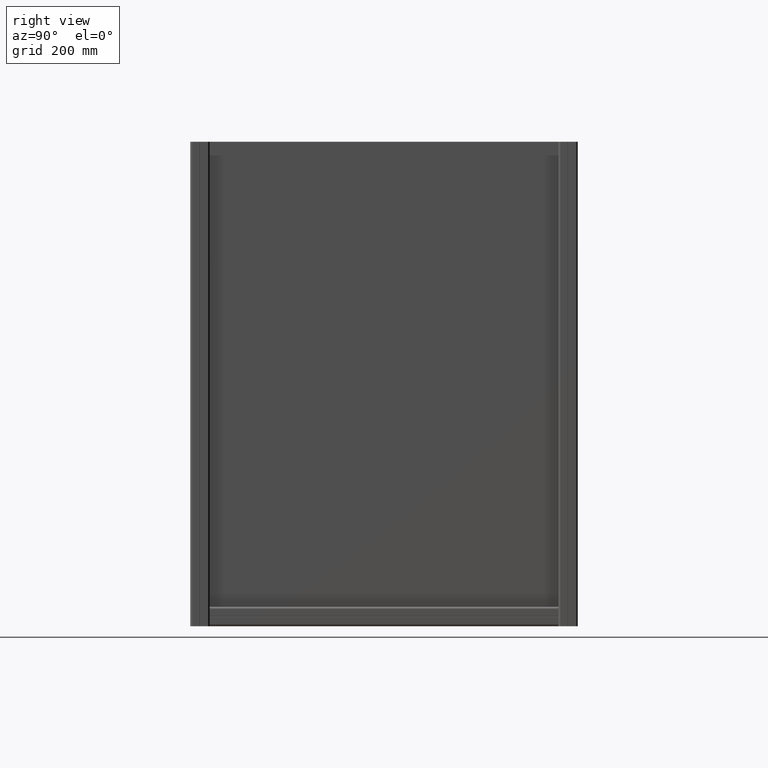
[diagram: clean part render]
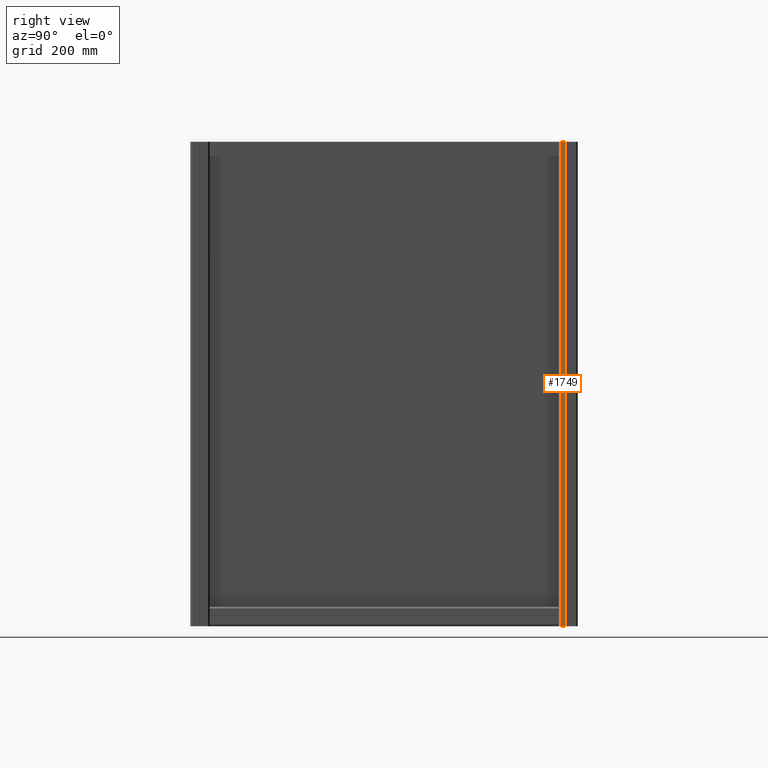
[diagram: same view with one face highlighted and labeled with its STEP entity id]
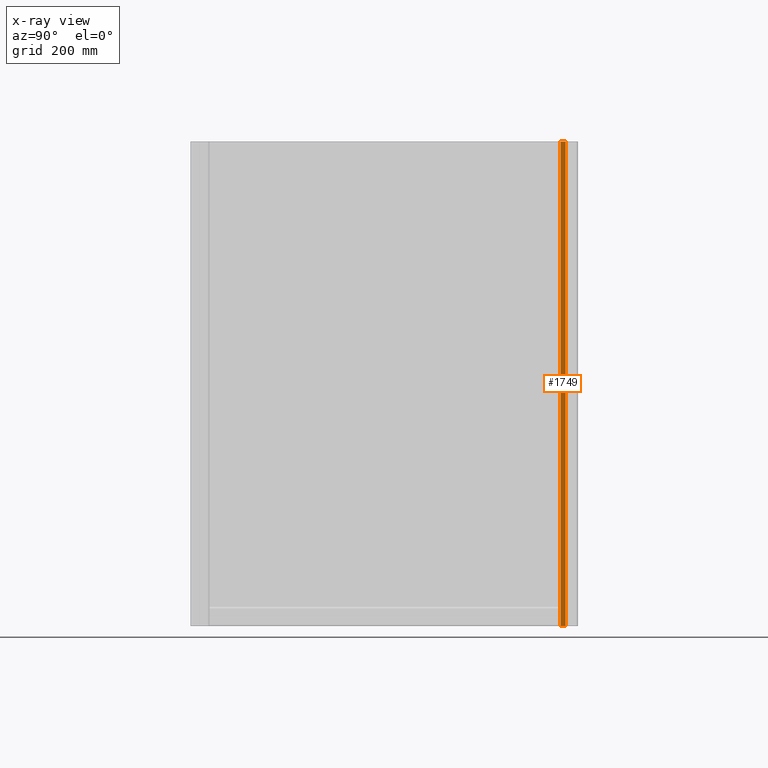
[diagram: x-ray of the same camera — body ghosted, the highlighted face saturated]
A machine part, right view. The second image highlights one B-rep face of the part: STEP entity #1749.
The next image is the same camera in x-ray: the body ghosted, the highlighted face saturated — about 0% of this face is hidden behind the body in this view.
In plain terms, the highlighted planar face has unit normal (-1, 0, 0).
Its self-contained STEP definition (entity closure, byte-faithful):
#180 = VECTOR ( 'NONE', #6920, 1000.000000000000000 ) ;
#1233 = EDGE_CURVE ( 'NONE', #9923, #9601, #7932, .T. ) ;
#1261 = ORIENTED_EDGE ( 'NONE', *, *, #10199, .F. ) ;
#1453 = CARTESIAN_POINT ( 'NONE',  ( 20.00000000000000000, -15.49999999999820055, 600.0000000000000000 ) ) ;
#1749 = ADVANCED_FACE ( 'NONE', ( #4438 ), #6565, .F. ) ;
#2156 = CARTESIAN_POINT ( 'NONE',  ( 20.00000000000000000, -15.49999999999820055, 800.0000000000000000 ) ) ;
#2468 = DIRECTION ( 'NONE',  ( 0.000000000000000000, 0.000000000000000000, 1.000000000000000000 ) ) ;
#2738 = DIRECTION ( 'NONE',  ( 0.000000000000000000, -1.000000000000000000, 0.000000000000000000 ) ) ;
#3148 = EDGE_LOOP ( 'NONE', ( #9724, #1261, #5697, #5786 ) ) ;
#3320 = DIRECTION ( 'NONE',  ( 0.000000000000000000, 0.000000000000000000, 1.000000000000000000 ) ) ;
#3755 = LINE ( 'NONE', #7190, #11288 ) ;
#3802 = EDGE_CURVE ( 'NONE', #11518, #10020, #3755, .T. ) ;
#3873 = DIRECTION ( 'NONE',  ( -1.000000000000000000, 0.000000000000000000, 0.000000000000000000 ) ) ;
#4438 = FACE_OUTER_BOUND ( 'NONE', #3148, .T. ) ;
#4875 = EDGE_CURVE ( 'NONE', #11518, #9601, #6593, .T. ) ;
#5332 = CARTESIAN_POINT ( 'NONE',  ( 20.00000000000000000, -5.100000000000370903, -400.0000000000000000 ) ) ;
#5697 = ORIENTED_EDGE ( 'NONE', *, *, #3802, .F. ) ;
#5786 = ORIENTED_EDGE ( 'NONE', *, *, #4875, .T. ) ;
#5864 = LINE ( 'NONE', #8714, #9740 ) ;
#6565 = PLANE ( 'NONE',  #9467 ) ;
#6593 = LINE ( 'NONE', #7721, #10521 ) ;
#6813 = DIRECTION ( 'NONE',  ( 0.000000000000000000, 0.000000000000000000, 1.000000000000000000 ) ) ;
#6920 = DIRECTION ( 'NONE',  ( -3.336006684571485188E-16, 1.000000000000000000, 0.000000000000000000 ) ) ;
#7190 = CARTESIAN_POINT ( 'NONE',  ( 20.00000000000000000, -5.100000000000370903, -400.0000000000000000 ) ) ;
#7721 = CARTESIAN_POINT ( 'NONE',  ( 20.00000000000000000, -5.100000000000360245, 800.0000000000000000 ) ) ;
#7932 = LINE ( 'NONE', #1453, #180 ) ;
#8163 = CARTESIAN_POINT ( 'NONE',  ( 20.00000000000000000, -15.49999999999820055, -400.0000000000000000 ) ) ;
#8552 = CARTESIAN_POINT ( 'NONE',  ( 20.00000000000000000, -5.100000000000370903, 600.0000000000000000 ) ) ;
#8714 = CARTESIAN_POINT ( 'NONE',  ( 20.00000000000000000, -15.49999999999820055, 800.0000000000000000 ) ) ;
#9299 = CARTESIAN_POINT ( 'NONE',  ( 20.00000000000000000, -15.49999999999820055, 600.0000000000000000 ) ) ;
#9467 = AXIS2_PLACEMENT_3D ( 'NONE', #2156, #3873, #6813 ) ;
#9601 = VERTEX_POINT ( 'NONE', #8552 ) ;
#9724 = ORIENTED_EDGE ( 'NONE', *, *, #1233, .F. ) ;
#9740 = VECTOR ( 'NONE', #2468, 1000.000000000000000 ) ;
#9923 = VERTEX_POINT ( 'NONE', #9299 ) ;
#10020 = VERTEX_POINT ( 'NONE', #8163 ) ;
#10199 = EDGE_CURVE ( 'NONE', #10020, #9923, #5864, .T. ) ;
#10521 = VECTOR ( 'NONE', #3320, 1000.000000000000000 ) ;
#11288 = VECTOR ( 'NONE', #2738, 1000.000000000000000 ) ;
#11518 = VERTEX_POINT ( 'NONE', #5332 ) ;